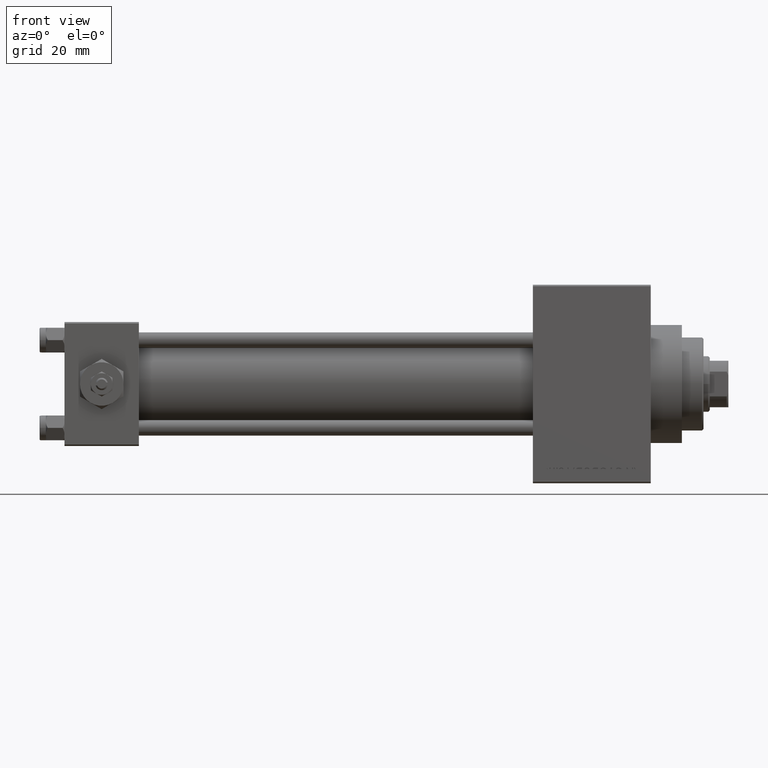
[diagram: clean part render]
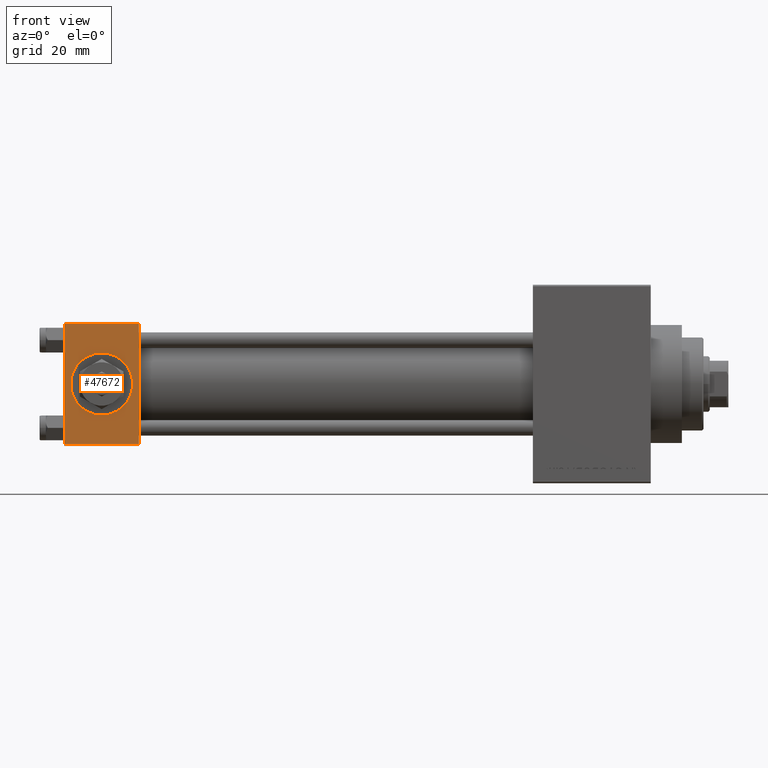
[diagram: same view with one face highlighted and labeled with its STEP entity id]
A machine part, front view. The second image highlights one B-rep face of the part: STEP entity #47672.
In plain terms, the highlighted planar face has unit normal (0, 1, 0).
Its self-contained STEP definition (entity closure, byte-faithful):
#2811 = LINE ( 'NONE', #47927, #24499 ) ;
#3023 = ORIENTED_EDGE ( 'NONE', *, *, #15183, .F. ) ;
#3614 = DIRECTION ( 'NONE',  ( 1.000000000000000000, 0.000000000000000000, 0.000000000000000000 ) ) ;
#4904 = AXIS2_PLACEMENT_3D ( 'NONE', #28275, #13463, #32466 ) ;
#5354 = FACE_OUTER_BOUND ( 'NONE', #39341, .T. ) ;
#5454 = VERTEX_POINT ( 'NONE', #15883 ) ;
#6351 = DIRECTION ( 'NONE',  ( 0.000000000000000000, 0.000000000000000000, -1.000000000000000000 ) ) ;
#6985 = CARTESIAN_POINT ( 'NONE',  ( 24.00000000000000000, -20.00000000000000000, -19.49999999999999645 ) ) ;
#7693 = CARTESIAN_POINT ( 'NONE',  ( 12.00000000000000000, -20.00000000000000355, -9.999999999999998224 ) ) ;
#8813 = DIRECTION ( 'NONE',  ( -0.000000000000000000, 1.000000000000000000, 8.673617379884036705E-17 ) ) ;
#10775 = LINE ( 'NONE', #22114, #16578 ) ;
#13463 = DIRECTION ( 'NONE',  ( 0.000000000000000000, -1.000000000000000000, -8.673617379884036705E-17 ) ) ;
#13776 = VERTEX_POINT ( 'NONE', #6985 ) ;
#14135 = DIRECTION ( 'NONE',  ( 0.000000000000000000, 8.673617379884036705E-17, -1.000000000000000000 ) ) ;
#14575 = ORIENTED_EDGE ( 'NONE', *, *, #40073, .T. ) ;
#15183 = EDGE_CURVE ( 'NONE', #5454, #35221, #29064, .T. ) ;
#15883 = CARTESIAN_POINT ( 'NONE',  ( 12.00000000000000178, -20.00000000000000355, 9.999999999999994671 ) ) ;
#16578 = VECTOR ( 'NONE', #19555, 1000.000000000000000 ) ;
#16918 = VERTEX_POINT ( 'NONE', #21795 ) ;
#18623 = CARTESIAN_POINT ( 'NONE',  ( 12.00000000000000000, -20.00000000000000355, -1.734723475976807883E-15 ) ) ;
#18880 = ORIENTED_EDGE ( 'NONE', *, *, #33328, .T. ) ;
#19555 = DIRECTION ( 'NONE',  ( 0.000000000000000000, 8.673617379884036705E-17, -1.000000000000000000 ) ) ;
#19947 = ORIENTED_EDGE ( 'NONE', *, *, #32555, .T. ) ;
#20367 = CARTESIAN_POINT ( 'NONE',  ( 24.00000000000000000, -20.00000000000000355, 19.99999999999998934 ) ) ;
#21133 = EDGE_CURVE ( 'NONE', #27410, #13776, #2811, .T. ) ;
#21795 = CARTESIAN_POINT ( 'NONE',  ( 0.000000000000000000, -20.00000000000000355, 19.49999999999998224 ) ) ;
#22013 = VECTOR ( 'NONE', #25689, 1000.000000000000000 ) ;
#22114 = CARTESIAN_POINT ( 'NONE',  ( 0.000000000000000000, -20.00000000000000355, 19.99999999999998934 ) ) ;
#22366 = EDGE_CURVE ( 'NONE', #35221, #5454, #24568, .T. ) ;
#22973 = EDGE_LOOP ( 'NONE', ( #33273, #3023 ) ) ;
#23595 = DIRECTION ( 'NONE',  ( 0.000000000000000000, -8.673617379884036705E-17, 1.000000000000000000 ) ) ;
#24499 = VECTOR ( 'NONE', #14135, 1000.000000000000000 ) ;
#24568 = CIRCLE ( 'NONE', #4904, 9.999999999999996447 ) ;
#24764 = AXIS2_PLACEMENT_3D ( 'NONE', #20367, #8813, #23595 ) ;
#25689 = DIRECTION ( 'NONE',  ( -1.000000000000000000, 0.000000000000000000, 0.000000000000000000 ) ) ;
#27410 = VERTEX_POINT ( 'NONE', #45679 ) ;
#27493 = VECTOR ( 'NONE', #3614, 1000.000000000000000 ) ;
#28275 = CARTESIAN_POINT ( 'NONE',  ( 12.00000000000000000, -20.00000000000000355, -1.734723475976807883E-15 ) ) ;
#29037 = LINE ( 'NONE', #47771, #27493 ) ;
#29064 = CIRCLE ( 'NONE', #47173, 9.999999999999996447 ) ;
#32466 = DIRECTION ( 'NONE',  ( 0.000000000000000000, 0.000000000000000000, -1.000000000000000000 ) ) ;
#32555 = EDGE_CURVE ( 'NONE', #39726, #13776, #29037, .T. ) ;
#33098 = LINE ( 'NONE', #44680, #22013 ) ;
#33273 = ORIENTED_EDGE ( 'NONE', *, *, #22366, .F. ) ;
#33328 = EDGE_CURVE ( 'NONE', #27410, #16918, #33098, .T. ) ;
#33459 = DIRECTION ( 'NONE',  ( 0.000000000000000000, -1.000000000000000000, -8.673617379884036705E-17 ) ) ;
#34245 = ORIENTED_EDGE ( 'NONE', *, *, #21133, .F. ) ;
#34713 = FACE_BOUND ( 'NONE', #22973, .T. ) ;
#35221 = VERTEX_POINT ( 'NONE', #7693 ) ;
#35996 = CARTESIAN_POINT ( 'NONE',  ( 0.000000000000000000, -20.00000000000000000, -19.49999999999999645 ) ) ;
#39341 = EDGE_LOOP ( 'NONE', ( #14575, #19947, #34245, #18880 ) ) ;
#39726 = VERTEX_POINT ( 'NONE', #35996 ) ;
#40073 = EDGE_CURVE ( 'NONE', #16918, #39726, #10775, .T. ) ;
#42592 = PLANE ( 'NONE',  #24764 ) ;
#44680 = CARTESIAN_POINT ( 'NONE',  ( 24.00000000000000000, -20.00000000000000355, 19.49999999999998224 ) ) ;
#45679 = CARTESIAN_POINT ( 'NONE',  ( 24.00000000000000000, -20.00000000000000355, 19.49999999999998224 ) ) ;
#47173 = AXIS2_PLACEMENT_3D ( 'NONE', #18623, #33459, #6351 ) ;
#47672 = ADVANCED_FACE ( 'NONE', ( #34713, #5354 ), #42592, .F. ) ;
#47771 = CARTESIAN_POINT ( 'NONE',  ( 24.00000000000000000, -20.00000000000000000, -19.49999999999999645 ) ) ;
#47927 = CARTESIAN_POINT ( 'NONE',  ( 24.00000000000000000, -20.00000000000000355, 19.99999999999998934 ) ) ;